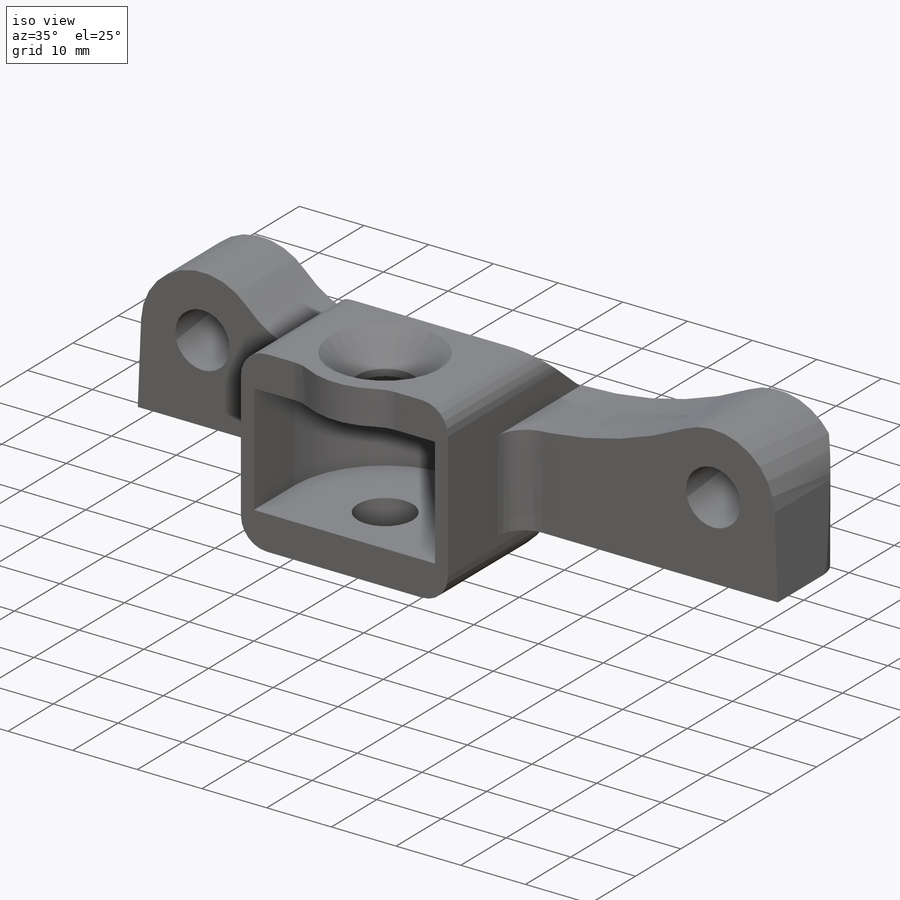
[diagram: iso view]
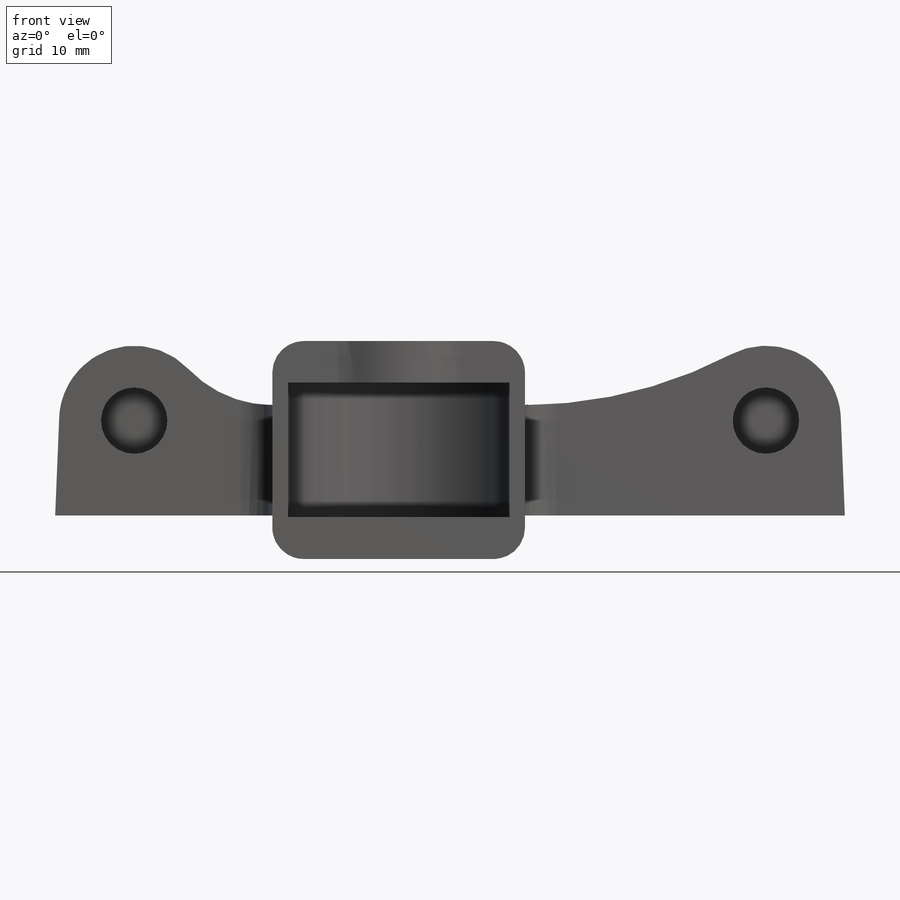
[diagram: front view]
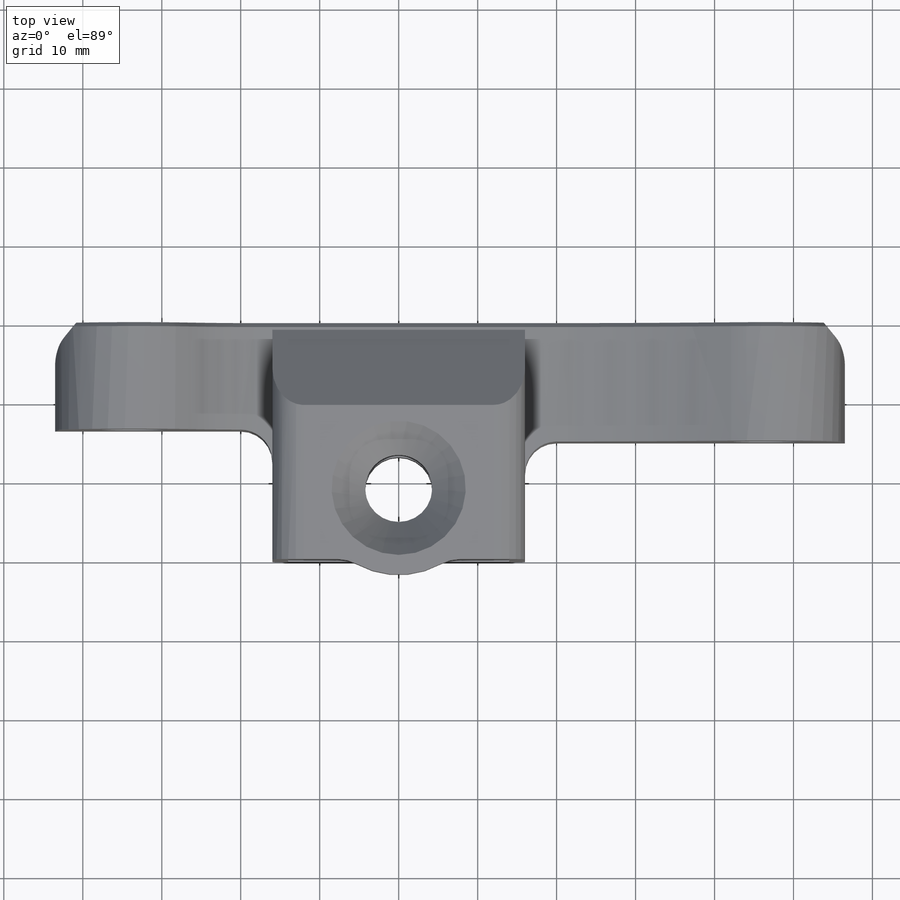
[diagram: top view]
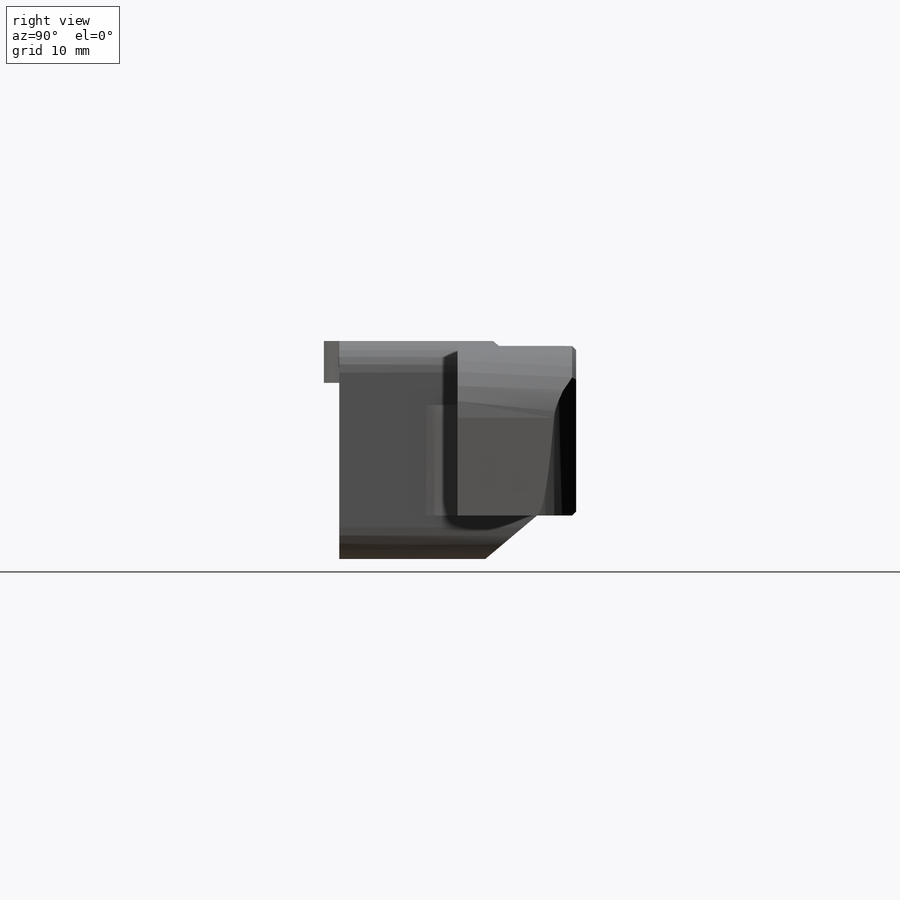
[diagram: right view]
SOLIDWORKS PART (.sldprt)
format: sldprt  version: not decoded by parser v0  size: 413,184 bytes
history: native  units: mm
features: sketch x11, cut_extrude x5, extrude x4, fillet x3, chamfer x2, material x1, hole x1 (+11 scaffold rows collapsed)
feature tree (38):
  scaffold x11  (default folders/planes/origin — collapsed)
  material  "Material <not specified>"
  sketch  "Sketch1"  dims[c1.D1=17.6mm c1.D2=14.0mm c1.D3=~14.126382mm c1.D4=5.0mm c1.D5=19.5mm c1.D6=30.0mm c1.D7=~32.884527mm c2.D7=40.0deg c2.D8=~16.130477mm c3.D8=40.0deg c3.D9=5.0mm c3.D10=0.5mm c3.D11=18.5mm]
  extrude  "Boss-Extrude1"  Depth=32mm
  sketch  "Sketch2"  dims[D2=8.5mm D1=9.0mm]
  cut_extrude  "Cut-Extrude1"  [1 undecoded]
  sketch  "Sketch3"  dims[D1=28.0mm]
  cut_extrude  "Cut-Extrude2"  Depth=17mm
  hole  "CSK for M8 Flat Head Machine Screw1"  Diameter=8mm Depth=27.6mm
  sketch  "Sketch5"
  sketch  "Sketch4"  dims[hole-wizard template sketch: 54 standard entries collapsed; hole parameters kept: c17.Thru Hole Dia.=8.0mm c17.Thru Hole Depth=27.6mm c17.Near C'Sink Dia.=17.0mm c17.D4=~3.666174mm c17.Near C'Sink Angle=90.0deg]
  sketch  "Sketch6"  dims[c1.D3=19.0mm c1.D4=8.4mm c1.D1=12.0mm c1.D2=46.5mm c1.D5=56.5mm c1.D6=100.0mm c1.D7=80.0mm c2.D5=10.0mm]
  extrude  "Boss-Extrude2"  Depth=15mm
  sketch  "Sketch7"
  extrude  "Boss-Extrude3"  Depth=4mm
  sketch  "Sketch9"  dims[c1.D1=5.2mm c1.D2=28.0mm c1.D3=36.0mm c1.D4=5.0mm c1.D5=5.0mm c1.D6=5.0mm c1.D7=5.0mm c2.D6=5.0mm c2.D7=5.0mm c2.D2=18.0mm c2.D3=18.0mm]
  cut_extrude  "Cut-Extrude3"  Depth=6mm
  sketch  "Sketch11"  dims[D1=0.0mm]
  cut_extrude  "Cut-Extrude4"  Depth=1.5mm
  fillet  "Fillet2"  Radius=4mm
  fillet  "Fillet3"  Radius=4mm
  sketch  "Sketch10"  dims[D1=22.0mm]
  extrude  "Boss-Extrude4"  [1 undecoded]
  fillet  "Fillet4"  Radius=5mm
  chamfer  "Chamfer1"  Distance=0.6mm Angle=45deg
  sketch  "Sketch12"  dims[c1.D1=~2.388334mm c2.D1=40.0deg c2.D2=~2.300622mm c3.D2=40.0deg]
  cut_extrude  "Cut-Extrude5"  [1 undecoded]
  chamfer  "Chamfer2"  Distance=0.5mm Angle=45deg
decode coverage: 21 of 26 modeling features carry decoded parameters
note: ~ marks probable driven/reference dimensions
note: 3 parameter values undecoded
summary: no parameter record found for 3 features
note: suppression state not decoded; provenance and decode notes live in map.json
